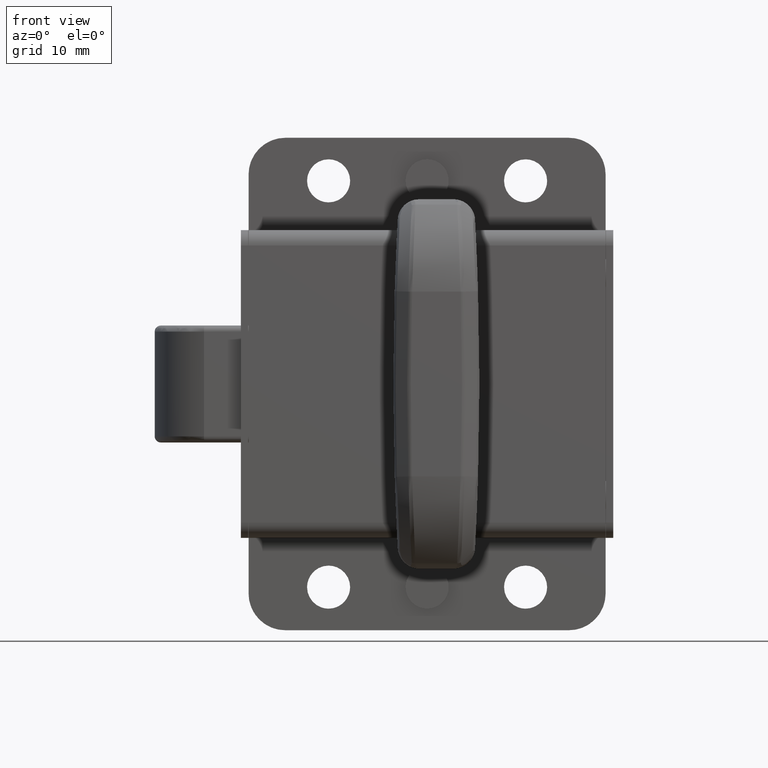
[diagram: clean part render]
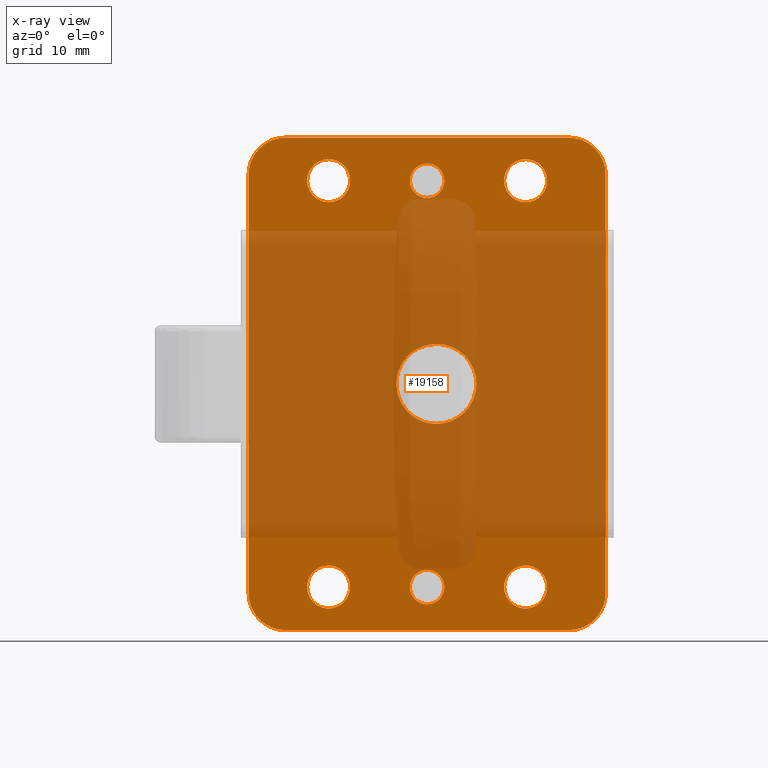
[diagram: x-ray — body ghosted, one internal face saturated and labeled with its STEP entity id]
A machine part, front view, then the same camera in x-ray: the body is ghosted and one INTERNAL B-rep face — a face not visible from any outside direction — is saturated and labeled: STEP entity #19158.
In plain terms, the highlighted face is a freeform B-spline surface patch.
Its self-contained STEP definition (entity closure, byte-faithful):
#15985=CARTESIAN_POINT('',(-4.792301663358950,-1.199999999999980,-4.391337459054315));
#15986=VERTEX_POINT('',#15985);
#15992=CARTESIAN_POINT('',(0.000001214073933,-1.199999999999980,-6.500000850103724));
#15993=VERTEX_POINT('',#15992);
#15994=CARTESIAN_POINT('',(-4.792301663358950,-1.199999999999980,-4.391337459054315));
#15995=CARTESIAN_POINT('',(-4.470015707304681,-1.199999999999978,-4.743171855040846));
#15996=CARTESIAN_POINT('',(-3.853720747870457,-1.199999999999983,-5.282344885085026));
#15997=CARTESIAN_POINT('',(-2.809964515657282,-1.199999999999976,-5.895433014173066));
#15998=CARTESIAN_POINT('',(-1.571603943293176,-1.199999999999982,-6.365425323140936));
#15999=CARTESIAN_POINT('',(-0.589415385706038,-1.199999999999980,-6.500221164891835));
#16000=CARTESIAN_POINT('',(0.000001214073933,-1.199999999999980,-6.500000850103724));
#16001=B_SPLINE_CURVE_WITH_KNOTS('',3,(#15994,#15995,#15996,#15997,#15998,#15999,#16000),.UNSPECIFIED.,.F.,.U.,(4,1,1,1,4),(0.000000020286969,1.431385826720467,2.441789631237880,3.620555862187216,5.388741804302561),.UNSPECIFIED.);
#16002=EDGE_CURVE('',#15986,#15993,#16001,.T.);
#16004=CARTESIAN_POINT('',(6.500001214073810,-1.199999999999980,0.000000410743780));
#16005=VERTEX_POINT('',#16004);
#16006=CARTESIAN_POINT('',(0.000001214073933,-1.199999999999980,-6.500000850103724));
#16007=CARTESIAN_POINT('',(0.425419468005159,-1.199999999999980,-6.500038131716355));
#16008=CARTESIAN_POINT('',(1.329443443233468,-1.199999999999979,-6.410982996561689));
#16009=CARTESIAN_POINT('',(2.553553276633491,-1.199999999999985,-6.023199855791245));
#16010=CARTESIAN_POINT('',(3.745935510485107,-1.199999999999972,-5.366895244898940));
#16011=CARTESIAN_POINT('',(4.846412343291277,-1.199999999999985,-4.429528985270027));
#16012=CARTESIAN_POINT('',(5.671700203156132,-1.199999999999979,-3.272791380923395));
#16013=CARTESIAN_POINT('',(6.140574684909497,-1.199999999999981,-2.196841752119047));
#16014=CARTESIAN_POINT('',(6.424787597008002,-1.199999999999981,-1.169878387314513));
#16015=CARTESIAN_POINT('',(6.500080360615208,-1.199999999999981,-0.452015617402365));
#16016=CARTESIAN_POINT('',(6.500001214073810,-1.199999999999980,0.000000410743780));
#16017=B_SPLINE_CURVE_WITH_KNOTS('',3,(#16006,#16007,#16008,#16009,#16010,#16011,#16012,#16013,#16014,#16015,#16016),.UNSPECIFIED.,.F.,.U.,(4,1,1,1,1,1,1,1,4),(0.000000073292902,1.276262834598748,2.712096167475313,3.828844210639872,5.344389993466797,7.019534449109688,8.056524343348579,8.854209608554262,10.210240899329250),.UNSPECIFIED.);
#16018=EDGE_CURVE('',#15993,#16005,#16017,.T.);
#16020=CARTESIAN_POINT('',(0.000001214073933,-1.199999999999980,6.499999149896276));
#16021=VERTEX_POINT('',#16020);
#16022=CARTESIAN_POINT('',(6.500001214073810,-1.199999999999980,0.000000410743780));
#16023=CARTESIAN_POINT('',(6.500183381790323,-1.199999999999985,0.558386322220361));
#16024=CARTESIAN_POINT('',(6.382743550411528,-1.199999999999971,1.462312592546497));
#16025=CARTESIAN_POINT('',(5.932330386673600,-1.199999999999988,2.745970474024642));
#16026=CARTESIAN_POINT('',(5.372904423925857,-1.199999999999970,3.719500498956982));
#16027=CARTESIAN_POINT('',(4.600443006949219,-1.199999999999993,4.637511982863880));
#16028=CARTESIAN_POINT('',(3.660102927218134,-1.199999999999975,5.428829736314413));
#16029=CARTESIAN_POINT('',(2.480454698086698,-1.199999999999987,6.059352016665108));
#16030=CARTESIAN_POINT('',(1.223085550253779,-1.199999999999958,6.423913500989699));
#16031=CARTESIAN_POINT('',(0.398835597850944,-1.200000000000049,6.500037162722860));
#16032=CARTESIAN_POINT('',(0.000001214073933,-1.199999999999980,6.499999149896276));
#16033=B_SPLINE_CURVE_WITH_KNOTS('',3,(#16022,#16023,#16024,#16025,#16026,#16027,#16028,#16029,#16030,#16031,#16032),.UNSPECIFIED.,.F.,.U.,(4,1,1,1,1,1,1,1,4),(0.000000073727589,1.675105284821985,2.712095790243967,4.068164782767649,5.025372981359588,6.301626187787408,7.737448314140335,9.013733064899856,10.210239478051360),.UNSPECIFIED.);
#16034=EDGE_CURVE('',#16005,#16021,#16033,.T.);
#16036=CARTESIAN_POINT('',(-4.658229887540539,-1.199999999999980,4.533306872488088));
#16037=VERTEX_POINT('',#16036);
#16038=CARTESIAN_POINT('',(0.000001214073933,-1.199999999999980,6.499999149896276));
#16039=CARTESIAN_POINT('',(-0.622169492574002,-1.199999999999981,6.500278598700613));
#16040=CARTESIAN_POINT('',(-1.514623900784171,-1.199999999999980,6.370822434779576));
#16041=CARTESIAN_POINT('',(-2.711373694765549,-1.199999999999980,5.934518477308647));
#16042=CARTESIAN_POINT('',(-3.688693793091402,-1.199999999999982,5.401440227368288));
#16043=CARTESIAN_POINT('',(-4.337574070853052,-1.199999999999980,4.862903421556821));
#16044=CARTESIAN_POINT('',(-4.658229887540539,-1.199999999999980,4.533306872488088));
#16045=B_SPLINE_CURVE_WITH_KNOTS('',3,(#16038,#16039,#16040,#16041,#16042,#16043,#16044),.UNSPECIFIED.,.F.,.U.,(4,1,1,1,4),(0.000000020541537,1.866406473722091,2.677866246871429,3.813945571181106,5.193458552064595),.UNSPECIFIED.);
#16046=EDGE_CURVE('',#16021,#16037,#16045,.T.);
#16083=CARTESIAN_POINT('',(-6.499998785925945,-1.199999999999980,-0.000002110951268));
#16084=VERTEX_POINT('',#16083);
#16085=CARTESIAN_POINT('',(-4.658229887540539,-1.199999999999980,4.533306872488088));
#16086=CARTESIAN_POINT('',(-4.986320601720766,-1.199999999999983,4.196308288386575));
#16087=CARTESIAN_POINT('',(-5.423113995365264,-1.199999999999978,3.637036386808933));
#16088=CARTESIAN_POINT('',(-5.937910034422883,-1.199999999999980,2.695746278033874));
#16089=CARTESIAN_POINT('',(-6.364942215579396,-1.199999999999989,1.567632854395846));
#16090=CARTESIAN_POINT('',(-6.500210322839753,-1.199999999999966,0.600988058048476));
#16091=CARTESIAN_POINT('',(-6.499998785925945,-1.199999999999980,-0.000002110951268));
#16092=B_SPLINE_CURVE_WITH_KNOTS('',3,(#16085,#16086,#16087,#16088,#16089,#16090,#16091),.UNSPECIFIED.,.F.,.U.,(4,1,1,1,4),(0.000000020608979,1.410970768505217,2.116459128091853,3.213875071421672,5.016782707480943),.UNSPECIFIED.);
#16093=EDGE_CURVE('',#16037,#16084,#16092,.T.);
#16095=CARTESIAN_POINT('',(-6.499998785925945,-1.199999999999980,-0.000002110951268));
#16096=CARTESIAN_POINT('',(-6.500064161619205,-1.199999999999980,-0.452022427979721));
#16097=CARTESIAN_POINT('',(-6.426339745132824,-1.199999999999981,-1.155117301204174));
#16098=CARTESIAN_POINT('',(-6.114951912197021,-1.199999999999977,-2.295631080389625));
#16099=CARTESIAN_POINT('',(-5.625603394015848,-1.199999999999994,-3.349721994576469));
#16100=CARTESIAN_POINT('',(-5.080743480167548,-1.199999999999972,-4.076622536040635));
#16101=CARTESIAN_POINT('',(-4.792301663358950,-1.199999999999980,-4.391337459054315));
#16102=B_SPLINE_CURVE_WITH_KNOTS('',3,(#16095,#16096,#16097,#16098,#16099,#16100,#16101),.UNSPECIFIED.,.F.,.U.,(4,1,1,1,4),(0.000000019845144,1.356048590183755,2.109405973048887,3.540786903215161,4.821497963178760),.UNSPECIFIED.);
#16103=EDGE_CURVE('',#16084,#15986,#16102,.T.);
#16199=CARTESIAN_POINT('',(0.564378294698098,-1.199999756963561,-31.108346926097742));
#16200=VERTEX_POINT('',#16199);
#16206=CARTESIAN_POINT('',(-1.499998785926152,-1.199999999999874,-30.199999999999999));
#16207=VERTEX_POINT('',#16206);
#16208=CARTESIAN_POINT('',(0.564378294698098,-1.199999756963561,-31.108346926097742));
#16209=CARTESIAN_POINT('',(0.433712888195126,-1.199999772346624,-30.965704595268129));
#16210=CARTESIAN_POINT('',(0.151735562420326,-1.199999805543430,-30.715751935942489));
#16211=CARTESIAN_POINT('',(-0.279312871124962,-1.199999856290176,-30.466291159827140));
#16212=CARTESIAN_POINT('',(-0.823028488602598,-1.199999920301086,-30.259948851366829));
#16213=CARTESIAN_POINT('',(-1.221905766415115,-1.199999967260358,-30.199859450533712));
#16214=CARTESIAN_POINT('',(-1.499998785926152,-1.199999999999874,-30.199999999999999));
#16215=B_SPLINE_CURVE_WITH_KNOTS('',3,(#16208,#16209,#16210,#16211,#16212,#16213,#16214),.UNSPECIFIED.,.F.,.U.,(4,1,1,1,4),(0.000000032918680,0.580326133600632,1.124399518544454,1.487083487862793,2.321304435653870),.UNSPECIFIED.);
#16216=EDGE_CURVE('',#16200,#16207,#16215,.T.);
#16218=CARTESIAN_POINT('',(-4.299998785925471,-1.199999999999874,-33.000001951717870));
#16219=VERTEX_POINT('',#16218);
#16220=CARTESIAN_POINT('',(-1.499998785926152,-1.199999999999874,-30.199999999999999));
#16221=CARTESIAN_POINT('',(-1.729075073179479,-1.199999999999875,-30.199938843554719));
#16222=CARTESIAN_POINT('',(-2.118470469845767,-1.199999999999870,-30.248074069695861));
#16223=CARTESIAN_POINT('',(-2.672889408829680,-1.199999999999873,-30.438793754339660));
#16224=CARTESIAN_POINT('',(-3.122196541352234,-1.199999999999881,-30.696994581340029));
#16225=CARTESIAN_POINT('',(-3.601046153301179,-1.199999999999873,-31.109923497232479));
#16226=CARTESIAN_POINT('',(-3.994447395764944,-1.199999999999873,-31.654161345332859));
#16227=CARTESIAN_POINT('',(-4.247671385329838,-1.199999999999875,-32.335702220650496));
#16228=CARTESIAN_POINT('',(-4.300037113128141,-1.199999999999874,-32.782382005344630));
#16229=CARTESIAN_POINT('',(-4.299998785925471,-1.199999999999874,-33.000001951717870));
#16230=B_SPLINE_CURVE_WITH_KNOTS('',3,(#16220,#16221,#16222,#16223,#16224,#16225,#16226,#16227,#16228,#16229),.UNSPECIFIED.,.F.,.U.,(4,1,1,1,1,1,1,4),(0.000000111330301,0.687214863138844,1.168289308711226,1.752438714769725,2.233456539250228,3.058156970560800,3.745400360037706,4.398258412087900),.UNSPECIFIED.);
#16231=EDGE_CURVE('',#16207,#16219,#16230,.T.);
#16233=CARTESIAN_POINT('',(-1.499998785926152,-1.199999999999874,-35.799999999999997));
#16234=VERTEX_POINT('',#16233);
#16235=CARTESIAN_POINT('',(-4.299998785925471,-1.199999999999874,-33.000001951717870));
#16236=CARTESIAN_POINT('',(-4.300236445373511,-1.199999999999876,-33.332198692015972));
#16237=CARTESIAN_POINT('',(-4.211331189186673,-1.199999999999873,-33.824529083963327));
#16238=CARTESIAN_POINT('',(-3.935934712630445,-1.199999999999874,-34.406470482256893));
#16239=CARTESIAN_POINT('',(-3.627749716097644,-1.199999999999873,-34.849934121683702));
#16240=CARTESIAN_POINT('',(-3.243291282613698,-1.199999999999872,-35.215953526750553));
#16241=CARTESIAN_POINT('',(-2.726789326181950,-1.199999999999881,-35.538604139724477));
#16242=CARTESIAN_POINT('',(-2.164308544686579,-1.199999999999853,-35.747685262396168));
#16243=CARTESIAN_POINT('',(-1.717617950881183,-1.199999999999895,-35.800037414538778));
#16244=CARTESIAN_POINT('',(-1.499998785926152,-1.199999999999874,-35.799999999999997));
#16245=B_SPLINE_CURVE_WITH_KNOTS('',3,(#16235,#16236,#16237,#16238,#16239,#16240,#16241,#16242,#16243,#16244),.UNSPECIFIED.,.F.,.U.,(4,1,1,1,1,1,1,4),(0.000000112002567,0.996479230406769,1.477551634614278,1.924262470805784,2.611441725202385,3.058155439671769,3.745398485375515,4.398256212033320),.UNSPECIFIED.);
#16246=EDGE_CURVE('',#16219,#16234,#16245,.T.);
#16248=CARTESIAN_POINT('',(0.506623411983129,-1.200000243874538,-34.952809068435492));
#16249=VERTEX_POINT('',#16248);
#16250=CARTESIAN_POINT('',(-1.499998785926152,-1.199999999999874,-35.799999999999997));
#16251=CARTESIAN_POINT('',(-1.325221218465181,-1.200000021241451,-35.800011304838463));
#16252=CARTESIAN_POINT('',(-0.940719196919770,-1.200000067971874,-35.763898072475428));
#16253=CARTESIAN_POINT('',(-0.223653127014348,-1.200000155120435,-35.542497944420667));
#16254=CARTESIAN_POINT('',(0.254924307029052,-1.200000213284316,-35.211983896234067));
#16255=CARTESIAN_POINT('',(0.506623411983129,-1.200000243874538,-34.952809068435492));
#16256=B_SPLINE_CURVE_WITH_KNOTS('',3,(#16250,#16251,#16252,#16253,#16254,#16255),.UNSPECIFIED.,.F.,.U.,(4,1,1,4),(0.000000030885372,0.524339305343396,1.153529005701464,2.237181902527841),.UNSPECIFIED.);
#16257=EDGE_CURVE('',#16234,#16249,#16256,.T.);
#16293=CARTESIAN_POINT('',(1.300001214073168,-1.199999999999874,-32.999998048282158));
#16294=VERTEX_POINT('',#16293);
#16295=CARTESIAN_POINT('',(0.506623411983129,-1.200000243874538,-34.952809068435492));
#16296=CARTESIAN_POINT('',(0.624382224396014,-1.200000228765451,-34.831823944326580));
#16297=CARTESIAN_POINT('',(0.859267817065191,-1.200000192588472,-34.542139002431703));
#16298=CARTESIAN_POINT('',(1.195524238876743,-1.200000112427126,-33.900251985047710));
#16299=CARTESIAN_POINT('',(1.300322514276370,-1.200000043581734,-33.348976994193180));
#16300=CARTESIAN_POINT('',(1.300001214073168,-1.199999999999874,-32.999998048282158));
#16301=B_SPLINE_CURVE_WITH_KNOTS('',3,(#16295,#16296,#16297,#16298,#16299,#16300),.UNSPECIFIED.,.F.,.U.,(4,1,1,4),(0.000000026006030,0.506502192906571,1.114289074912303,2.161076811412693),.UNSPECIFIED.);
#16302=EDGE_CURVE('',#16249,#16294,#16301,.T.);
#16304=CARTESIAN_POINT('',(1.300001214073168,-1.199999999999874,-32.999998048282158));
#16305=CARTESIAN_POINT('',(1.300434967868318,-1.199999952737572,-32.632136088296697));
#16306=CARTESIAN_POINT('',(1.161421493031856,-1.199999863840112,-31.940210715667099));
#16307=CARTESIAN_POINT('',(0.783823154820013,-1.199999787685512,-31.347468330939961));
#16308=CARTESIAN_POINT('',(0.564378294698098,-1.199999756963561,-31.108346926097742));
#16309=B_SPLINE_CURVE_WITH_KNOTS('',3,(#16304,#16305,#16306,#16307,#16308),.UNSPECIFIED.,.F.,.U.,(4,1,4),(0.000000012554552,1.103398861330132,2.076986617832425),.UNSPECIFIED.);
#16310=EDGE_CURVE('',#16294,#16200,#16309,.T.);
#16406=CARTESIAN_POINT('',(0.564378294698094,-1.199999756963563,34.891653073902262));
#16407=VERTEX_POINT('',#16406);
#16413=CARTESIAN_POINT('',(-1.499998785926152,-1.199999999999874,35.799999999999997));
#16414=VERTEX_POINT('',#16413);
#16415=CARTESIAN_POINT('',(0.564378294698094,-1.199999756963563,34.891653073902262));
#16416=CARTESIAN_POINT('',(0.335858033011489,-1.199999783866946,35.141484741326423));
#16417=CARTESIAN_POINT('',(-0.046598242961675,-1.199999828893000,35.430250316865532));
#16418=CARTESIAN_POINT('',(-0.762614568240878,-1.199999913188633,35.728795151074969));
#16419=CARTESIAN_POINT('',(-1.197714101798816,-1.199999964412310,35.800200607277283));
#16420=CARTESIAN_POINT('',(-1.499998785926152,-1.199999999999874,35.799999999999997));
#16421=B_SPLINE_CURVE_WITH_KNOTS('',3,(#16415,#16416,#16417,#16418,#16419,#16420),.UNSPECIFIED.,.F.,.U.,(4,1,1,4),(0.000000032918998,1.015581564237160,1.414542683934398,2.321304435653863),.UNSPECIFIED.);
#16422=EDGE_CURVE('',#16407,#16414,#16421,.T.);
#16424=CARTESIAN_POINT('',(-4.299998785925472,-1.199999999999874,32.999998048282123));
#16425=VERTEX_POINT('',#16424);
#16426=CARTESIAN_POINT('',(-1.499998785926152,-1.199999999999874,35.799999999999997));
#16427=CARTESIAN_POINT('',(-1.729074125215980,-1.199999999999875,35.800056475554157));
#16428=CARTESIAN_POINT('',(-2.118471635389773,-1.199999999999874,35.751930747783582));
#16429=CARTESIAN_POINT('',(-2.672888922694134,-1.199999999999870,35.561204647052072));
#16430=CARTESIAN_POINT('',(-3.122196616126589,-1.199999999999882,35.303005710656691));
#16431=CARTESIAN_POINT('',(-3.601046138199443,-1.199999999999877,34.890076457606170));
#16432=CARTESIAN_POINT('',(-3.994447425197427,-1.199999999999863,34.345838650068082));
#16433=CARTESIAN_POINT('',(-4.247671340504716,-1.199999999999895,33.664297853923813));
#16434=CARTESIAN_POINT('',(-4.300037202326118,-1.199999999999853,33.217617949687742));
#16435=CARTESIAN_POINT('',(-4.299998785925472,-1.199999999999874,32.999998048282123));
#16436=B_SPLINE_CURVE_WITH_KNOTS('',3,(#16426,#16427,#16428,#16429,#16430,#16431,#16432,#16433,#16434,#16435),.UNSPECIFIED.,.F.,.U.,(4,1,1,1,1,1,1,4),(0.000000111332822,0.687214863140170,1.168289308711644,1.752438714769383,2.233456539249842,3.058156970560976,3.745400360038023,4.398258412087889),.UNSPECIFIED.);
#16437=EDGE_CURVE('',#16414,#16425,#16436,.T.);
#16439=CARTESIAN_POINT('',(-1.499998785926152,-1.199999999999874,30.199999999999999));
#16440=VERTEX_POINT('',#16439);
#16441=CARTESIAN_POINT('',(-4.299998785925472,-1.199999999999874,32.999998048282123));
#16442=CARTESIAN_POINT('',(-4.300050285754481,-1.199999999999875,32.770923281404912));
#16443=CARTESIAN_POINT('',(-4.246293835179801,-1.199999999999873,32.335707151894290));
#16444=CARTESIAN_POINT('',(-4.041506220291189,-1.199999999999875,31.784834231507769));
#16445=CARTESIAN_POINT('',(-3.707404398017984,-1.199999999999869,31.234883414959739));
#16446=CARTESIAN_POINT('',(-3.251349241301072,-1.199999999999887,30.773198359745159));
#16447=CARTESIAN_POINT('',(-2.733538129362205,-1.199999999999859,30.471560372685179));
#16448=CARTESIAN_POINT('',(-2.175691987439064,-1.199999999999887,30.260277307819489));
#16449=CARTESIAN_POINT('',(-1.786365234962925,-1.199999999999862,30.199842622685988));
#16450=CARTESIAN_POINT('',(-1.499998785926152,-1.199999999999874,30.199999999999999));
#16451=B_SPLINE_CURVE_WITH_KNOTS('',3,(#16441,#16442,#16443,#16444,#16445,#16446,#16447,#16448,#16449,#16450),.UNSPECIFIED.,.F.,.U.,(4,1,1,1,1,1,1,4),(0.000000112001350,0.687214519843126,1.305734410517070,1.752437837361254,2.611441725202909,3.229968844155498,3.539228952763971,4.398256212033181),.UNSPECIFIED.);
#16452=EDGE_CURVE('',#16425,#16440,#16451,.T.);
#16454=CARTESIAN_POINT('',(0.506623411983129,-1.200000243874538,31.047190931564501));
#16455=VERTEX_POINT('',#16454);
#16456=CARTESIAN_POINT('',(-1.499998785926152,-1.199999999999874,30.199999999999999));
#16457=CARTESIAN_POINT('',(-1.197033964501218,-1.200000036820678,30.199829991218220));
#16458=CARTESIAN_POINT('',(-0.649479688938263,-1.200000103367645,30.289751410070220));
#16459=CARTESIAN_POINT('',(0.025885292791623,-1.200000185448064,30.620800016601461));
#16460=CARTESIAN_POINT('',(0.368491661991223,-1.200000227086712,30.905218797330878));
#16461=CARTESIAN_POINT('',(0.506623411983129,-1.200000243874538,31.047190931564501));
#16462=B_SPLINE_CURVE_WITH_KNOTS('',3,(#16456,#16457,#16458,#16459,#16460,#16461),.UNSPECIFIED.,.F.,.U.,(4,1,1,4),(0.000000030885003,0.908862581328084,1.642930241164364,2.237181902527837),.UNSPECIFIED.);
#16463=EDGE_CURVE('',#16440,#16455,#16462,.T.);
#16499=CARTESIAN_POINT('',(1.300001214073168,-1.199999999999874,33.000001951717827));
#16500=VERTEX_POINT('',#16499);
#16501=CARTESIAN_POINT('',(0.506623411983129,-1.200000243874538,31.047190931564501));
#16502=CARTESIAN_POINT('',(0.710834411996204,-1.200000217695107,31.256821186552319));
#16503=CARTESIAN_POINT('',(1.019658687310254,-1.200000163053979,31.694356633140028));
#16504=CARTESIAN_POINT('',(1.256016432984766,-1.200000077309763,32.380948027645012));
#16505=CARTESIAN_POINT('',(1.300022827533029,-1.200000023895627,32.808658275496931));
#16506=CARTESIAN_POINT('',(1.300001214073168,-1.199999999999874,33.000001951717827));
#16507=B_SPLINE_CURVE_WITH_KNOTS('',3,(#16501,#16502,#16503,#16504,#16505,#16506),.UNSPECIFIED.,.F.,.U.,(4,1,1,4),(0.000000026005425,0.877944132848981,1.587040585609728,2.161076811412690),.UNSPECIFIED.);
#16508=EDGE_CURVE('',#16455,#16500,#16507,.T.);
#16510=CARTESIAN_POINT('',(1.300001214073168,-1.199999999999874,33.000001951717827));
#16511=CARTESIAN_POINT('',(1.300066108334748,-1.199999969423279,33.237992185001019));
#16512=CARTESIAN_POINT('',(1.252808009377791,-1.199999922175596,33.605740293859583));
#16513=CARTESIAN_POINT('',(1.031557870955864,-1.199999837662511,34.263540290625258));
#16514=CARTESIAN_POINT('',(0.783845519206349,-1.199999787685359,34.652532842603833));
#16515=CARTESIAN_POINT('',(0.564378294698094,-1.199999756963563,34.891653073902262));
#16516=B_SPLINE_CURVE_WITH_KNOTS('',3,(#16510,#16511,#16512,#16513,#16514,#16515),.UNSPECIFIED.,.F.,.U.,(4,1,1,4),(0.000000012553828,0.713964351172842,1.103398861330196,2.076986617832442),.UNSPECIFIED.);
#16517=EDGE_CURVE('',#16500,#16407,#16516,.T.);
#16571=CARTESIAN_POINT('',(17.172446280861401,-1.199999999999980,35.260097426349191));
#16572=VERTEX_POINT('',#16571);
#16578=CARTESIAN_POINT('',(14.500001214073921,-1.199999999999980,36.500000000000007));
#16579=VERTEX_POINT('',#16578);
#16580=CARTESIAN_POINT('',(17.172446280861401,-1.199999999999980,35.260097426349191));
#16581=CARTESIAN_POINT('',(16.988409371556539,-1.199999999999982,35.477815584039973));
#16582=CARTESIAN_POINT('',(16.555018856680459,-1.199999999999978,35.878700462773743));
#16583=CARTESIAN_POINT('',(15.655941163067419,-1.199999999999982,36.364776992531773));
#16584=CARTESIAN_POINT('',(14.927663364982090,-1.199999999999977,36.500361177897709));
#16585=CARTESIAN_POINT('',(14.500001214073921,-1.199999999999980,36.500000000000007));
#16586=B_SPLINE_CURVE_WITH_KNOTS('',3,(#16580,#16581,#16582,#16583,#16584,#16585),.UNSPECIFIED.,.F.,.U.,(4,1,1,4),(0.000000035719705,0.855234592869286,1.757967933713819,3.040829194914025),.UNSPECIFIED.);
#16587=EDGE_CURVE('',#16572,#16579,#16586,.T.);
#16589=CARTESIAN_POINT('',(11.000001214074359,-1.199999999999980,32.999998254870377));
#16590=VERTEX_POINT('',#16589);
#16591=CARTESIAN_POINT('',(14.500001214073921,-1.199999999999980,36.500000000000007));
#16592=CARTESIAN_POINT('',(14.199339371578240,-1.199999999999981,36.500073603136499));
#16593=CARTESIAN_POINT('',(13.583720982109700,-1.199999999999980,36.420219185640377));
#16594=CARTESIAN_POINT('',(12.849562354033880,-1.199999999999982,36.116159061575082));
#16595=CARTESIAN_POINT('',(12.281395214752010,-1.199999999999980,35.726212968532110));
#16596=CARTESIAN_POINT('',(11.844263560641931,-1.199999999999981,35.310077359996477));
#16597=CARTESIAN_POINT('',(11.507175547486920,-1.199999999999980,34.843703045063862));
#16598=CARTESIAN_POINT('',(11.242759166916461,-1.199999999999979,34.318377104087837));
#16599=CARTESIAN_POINT('',(11.052430161298391,-1.199999999999982,33.730154135407048));
#16600=CARTESIAN_POINT('',(10.999949685649170,-1.199999999999980,33.257710660482381));
#16601=CARTESIAN_POINT('',(11.000001214074359,-1.199999999999980,32.999998254870377));
#16602=B_SPLINE_CURVE_WITH_KNOTS('',3,(#16591,#16592,#16593,#16594,#16595,#16596,#16597,#16598,#16599,#16600,#16601),.UNSPECIFIED.,.F.,.U.,(4,1,1,1,1,1,1,1,4),(0.000000101519645,0.901978698585748,1.846935036658562,2.362369571799328,2.963665000347733,3.650890574721147,4.080416664221138,4.724695051800475,5.497822623661585),.UNSPECIFIED.);
#16603=EDGE_CURVE('',#16579,#16590,#16602,.T.);
#16605=CARTESIAN_POINT('',(14.500001214073921,-1.199999999999980,29.500000000000000));
#16606=VERTEX_POINT('',#16605);
#16607=CARTESIAN_POINT('',(11.000001214074359,-1.199999999999980,32.999998254870377));
#16608=CARTESIAN_POINT('',(10.999922702182561,-1.199999999999980,32.699332547900873));
#16609=CARTESIAN_POINT('',(11.063127002079380,-1.199999999999980,32.212598866230422));
#16610=CARTESIAN_POINT('',(11.324660972148060,-1.199999999999981,31.467165103587760));
#16611=CARTESIAN_POINT('',(11.714510682934741,-1.199999999999982,30.825663256581890));
#16612=CARTESIAN_POINT('',(12.264584710573491,-1.199999999999980,30.275669783306071));
#16613=CARTESIAN_POINT('',(12.876769079647010,-1.199999999999976,29.872032341781232));
#16614=CARTESIAN_POINT('',(13.612390613247991,-1.199999999999992,29.577846867380149));
#16615=CARTESIAN_POINT('',(14.185015083390700,-1.199999999999967,29.499888402775799));
#16616=CARTESIAN_POINT('',(14.500001214073921,-1.199999999999980,29.500000000000000));
#16617=B_SPLINE_CURVE_WITH_KNOTS('',3,(#16607,#16608,#16609,#16610,#16611,#16612,#16613,#16614,#16615,#16616),.UNSPECIFIED.,.F.,.U.,(4,1,1,1,1,1,1,4),(0.000000102146859,0.901978376184235,1.460361594069925,2.362368726357496,3.135454784094645,3.779750652652952,4.552895210826786,5.497820656481328),.UNSPECIFIED.);
#16618=EDGE_CURVE('',#16590,#16606,#16617,.T.);
#16620=CARTESIAN_POINT('',(16.909241962881921,-1.199999999999980,30.461190049552449));
#16621=VERTEX_POINT('',#16620);
#16622=CARTESIAN_POINT('',(14.500001214073921,-1.199999999999980,29.500000000000000));
#16623=CARTESIAN_POINT('',(14.859871698497599,-1.199999999999980,29.499813289464491));
#16624=CARTESIAN_POINT('',(15.357982121907710,-1.199999999999980,29.577529204153791));
#16625=CARTESIAN_POINT('',(16.185996554190002,-1.199999999999980,29.896556350939640));
#16626=CARTESIAN_POINT('',(16.628298289132861,-1.199999999999977,30.194202247902890));
#16627=CARTESIAN_POINT('',(16.909241962881921,-1.199999999999980,30.461190049552449));
#16628=B_SPLINE_CURVE_WITH_KNOTS('',3,(#16622,#16623,#16624,#16625,#16626,#16627),.UNSPECIFIED.,.F.,.U.,(4,1,1,4),(0.000000026549798,1.079530525100200,1.494709213030870,2.657279247570143),.UNSPECIFIED.);
#16629=EDGE_CURVE('',#16606,#16621,#16628,.T.);
#16715=CARTESIAN_POINT('',(18.000001214073482,-1.199999999999980,33.000001745129588));
#16716=VERTEX_POINT('',#16715);
#16717=CARTESIAN_POINT('',(16.909241962881921,-1.199999999999980,30.461190049552449));
#16718=CARTESIAN_POINT('',(17.156170531483191,-1.199999999999980,30.695327206788431));
#16719=CARTESIAN_POINT('',(17.580856924002909,-1.199999999999980,31.236376634549188));
#16720=CARTESIAN_POINT('',(17.930553719171929,-1.199999999999979,32.127110532943490));
#16721=CARTESIAN_POINT('',(18.000030023332609,-1.199999999999980,32.733706461856258));
#16722=CARTESIAN_POINT('',(18.000001214073482,-1.199999999999980,33.000001745129588));
#16723=B_SPLINE_CURVE_WITH_KNOTS('',3,(#16717,#16718,#16719,#16720,#16721,#16722),.UNSPECIFIED.,.F.,.U.,(4,1,1,4),(0.000000032780110,1.020828476301063,2.041638957000445,2.840543910403616),.UNSPECIFIED.);
#16724=EDGE_CURVE('',#16621,#16716,#16723,.T.);
#16726=CARTESIAN_POINT('',(18.000001214073482,-1.199999999999980,33.000001745129588));
#16727=CARTESIAN_POINT('',(18.000267208477329,-1.199999999999980,33.383948291672233));
#16728=CARTESIAN_POINT('',(17.906379934639322,-1.199999999999974,33.946829780113767));
#16729=CARTESIAN_POINT('',(17.582039408298460,-1.199999999999985,34.701509643136589));
#16730=CARTESIAN_POINT('',(17.337756341301692,-1.199999999999977,35.064704381932110));
#16731=CARTESIAN_POINT('',(17.172446280861401,-1.199999999999980,35.260097426349191));
#16732=B_SPLINE_CURVE_WITH_KNOTS('',3,(#16726,#16727,#16728,#16729,#16730,#16731),.UNSPECIFIED.,.F.,.U.,(4,1,1,4),(0.000000020262999,1.151718543547433,1.689178407128423,2.456992204728481),.UNSPECIFIED.);
#16733=EDGE_CURVE('',#16716,#16572,#16732,.T.);
#16778=CARTESIAN_POINT('',(-14.827553719138670,-1.199999999999980,35.260097426349191));
#16779=VERTEX_POINT('',#16778);
#16785=CARTESIAN_POINT('',(-17.499998785926149,-1.199999999999980,36.500000000000007));
#16786=VERTEX_POINT('',#16785);
#16787=CARTESIAN_POINT('',(-14.827553719138670,-1.199999999999980,35.260097426349191));
#16788=CARTESIAN_POINT('',(-15.011584710485151,-1.199999999999981,35.477828123980572));
#16789=CARTESIAN_POINT('',(-15.327877383204321,-1.199999999999978,35.770314502982032));
#16790=CARTESIAN_POINT('',(-15.864486211597390,-1.199999999999982,36.109244864197002));
#16791=CARTESIAN_POINT('',(-16.534032788288581,-1.199999999999978,36.403576994242421));
#16792=CARTESIAN_POINT('',(-17.119861884577631,-1.199999999999982,36.500224664852148));
#16793=CARTESIAN_POINT('',(-17.499998785926149,-1.199999999999980,36.500000000000007));
#16794=B_SPLINE_CURVE_WITH_KNOTS('',3,(#16787,#16788,#16789,#16790,#16791,#16792,#16793),.UNSPECIFIED.,.F.,.U.,(4,1,1,1,4),(0.000000035718191,0.855234592868719,1.282861296967901,1.900510504468143,3.040829194914022),.UNSPECIFIED.);
#16795=EDGE_CURVE('',#16779,#16786,#16794,.T.);
#16797=CARTESIAN_POINT('',(-20.999998785925708,-1.199999999999980,32.999998254870377));
#16798=VERTEX_POINT('',#16797);
#16799=CARTESIAN_POINT('',(-17.499998785926149,-1.199999999999980,36.500000000000007));
#16800=CARTESIAN_POINT('',(-17.800666238035650,-1.199999999999980,36.500089410015882));
#16801=CARTESIAN_POINT('',(-18.287395768216442,-1.199999999999979,36.436861764500563));
#16802=CARTESIAN_POINT('',(-19.032829091105079,-1.199999999999979,36.175337764026601));
#16803=CARTESIAN_POINT('',(-19.736061267654431,-1.199999999999982,35.748043516245879));
#16804=CARTESIAN_POINT('',(-20.340343912036879,-1.199999999999981,35.105461982914463));
#16805=CARTESIAN_POINT('',(-20.726270174498872,-1.199999999999974,34.414141276611950));
#16806=CARTESIAN_POINT('',(-20.947565553250239,-1.199999999999981,33.730150839641588));
#16807=CARTESIAN_POINT('',(-21.000050407612100,-1.199999999999981,33.257710797364702));
#16808=CARTESIAN_POINT('',(-20.999998785925708,-1.199999999999980,32.999998254870377));
#16809=B_SPLINE_CURVE_WITH_KNOTS('',3,(#16799,#16800,#16801,#16802,#16803,#16804,#16805,#16806,#16807,#16808),.UNSPECIFIED.,.F.,.U.,(4,1,1,1,1,1,1,4),(0.000000101531078,0.901978698593791,1.460362116029285,2.362369571803066,3.350224037189566,4.080416664221897,4.724695051800785,5.497822623661588),.UNSPECIFIED.);
#16810=EDGE_CURVE('',#16786,#16798,#16809,.T.);
#16812=CARTESIAN_POINT('',(-17.499998785926149,-1.199999999999980,29.500000000000000));
#16813=VERTEX_POINT('',#16812);
#16814=CARTESIAN_POINT('',(-20.999998785925708,-1.199999999999980,32.999998254870377));
#16815=CARTESIAN_POINT('',(-21.000033966090520,-1.199999999999980,32.742296463949607));
#16816=CARTESIAN_POINT('',(-20.936520819292369,-1.199999999999979,32.169598709866747));
#16817=CARTESIAN_POINT('',(-20.649618638772381,-1.199999999999978,31.397680872629341));
#16818=CARTESIAN_POINT('',(-20.165323733761010,-1.199999999999982,30.682466262378920));
#16819=CARTESIAN_POINT('',(-19.633492071302999,-1.199999999999983,30.194460036657130));
#16820=CARTESIAN_POINT('',(-19.042395582718530,-1.199999999999970,29.840254144550940));
#16821=CARTESIAN_POINT('',(-18.373281700251749,-1.199999999999982,29.577377604144360));
#16822=CARTESIAN_POINT('',(-17.829307713539901,-1.199999999999988,29.499866078639101));
#16823=CARTESIAN_POINT('',(-17.499998785926149,-1.199999999999980,29.500000000000000));
#16824=B_SPLINE_CURVE_WITH_KNOTS('',3,(#16814,#16815,#16816,#16817,#16818,#16819,#16820,#16821,#16822,#16823),.UNSPECIFIED.,.F.,.U.,(4,1,1,1,1,1,1,4),(0.000000102129741,0.773114264907706,1.718072327788990,2.448262336582348,3.350222836631181,3.865654999035774,4.509934724384633,5.497820656481434),.UNSPECIFIED.);
#16825=EDGE_CURVE('',#16798,#16813,#16824,.T.);
#16827=CARTESIAN_POINT('',(-15.090758037118150,-1.199999999999980,30.461190049552449));
#16828=VERTEX_POINT('',#16827);
#16829=CARTESIAN_POINT('',(-17.499998785926149,-1.199999999999980,29.500000000000000));
#16830=CARTESIAN_POINT('',(-17.278559380827819,-1.199999999999982,29.499978676519341));
#16831=CARTESIAN_POINT('',(-16.821850045151610,-1.199999999999985,29.543468763723610));
#16832=CARTESIAN_POINT('',(-16.248796577086189,-1.199999999999969,29.714878364451899));
#16833=CARTESIAN_POINT('',(-15.649781188935370,-1.199999999999995,30.004819765322971));
#16834=CARTESIAN_POINT('',(-15.301534452571470,-1.199999999999971,30.261063659624352));
#16835=CARTESIAN_POINT('',(-15.090758037118150,-1.199999999999980,30.461190049552449));
#16836=B_SPLINE_CURVE_WITH_KNOTS('',3,(#16829,#16830,#16831,#16832,#16833,#16834,#16835),.UNSPECIFIED.,.F.,.U.,(4,1,1,1,4),(0.000000026552969,0.664319831806173,1.370142638173089,1.785356104447892,2.657279247570125),.UNSPECIFIED.);
#16837=EDGE_CURVE('',#16813,#16828,#16836,.T.);
#16922=CARTESIAN_POINT('',(-13.999998785926589,-1.199999999999980,33.000001745129588));
#16923=VERTEX_POINT('',#16922);
#16924=CARTESIAN_POINT('',(-15.090758037118150,-1.199999999999980,30.461190049552449));
#16925=CARTESIAN_POINT('',(-14.940506026921110,-1.199999999999980,30.603750490094519));
#16926=CARTESIAN_POINT('',(-14.645761850306849,-1.199999999999982,30.937930360389071));
#16927=CARTESIAN_POINT('',(-14.328616842365440,-1.199999999999974,31.475977267824060));
#16928=CARTESIAN_POINT('',(-14.070697553419659,-1.199999999999985,32.171583801200832));
#16929=CARTESIAN_POINT('',(-13.999878969998569,-1.199999999999978,32.674506835203672));
#16930=CARTESIAN_POINT('',(-13.999998785926589,-1.199999999999980,33.000001745129588));
#16931=B_SPLINE_CURVE_WITH_KNOTS('',3,(#16924,#16925,#16926,#16927,#16928,#16929,#16930),.UNSPECIFIED.,.F.,.U.,(4,1,1,1,4),(0.000000032780936,0.621367018189227,1.331515744419594,1.864105293257456,2.840543910403647),.UNSPECIFIED.);
#16932=EDGE_CURVE('',#16828,#16923,#16931,.T.);
#16934=CARTESIAN_POINT('',(-13.999998785926589,-1.199999999999980,33.000001745129588));
#16935=CARTESIAN_POINT('',(-13.999987521580030,-1.199999999999980,33.217544753523683));
#16936=CARTESIAN_POINT('',(-14.047811319281960,-1.199999999999983,33.729427771163003));
#16937=CARTESIAN_POINT('',(-14.301692073889891,-1.199999999999973,34.514934230870089));
#16938=CARTESIAN_POINT('',(-14.629154932744280,-1.199999999999987,35.025645107985177));
#16939=CARTESIAN_POINT('',(-14.827553719138670,-1.199999999999980,35.260097426349191));
#16940=B_SPLINE_CURVE_WITH_KNOTS('',3,(#16934,#16935,#16936,#16937,#16938,#16939),.UNSPECIFIED.,.F.,.U.,(4,1,1,4),(0.000000020256295,0.652638762507576,1.535614072067835,2.456992204728486),.UNSPECIFIED.);
#16941=EDGE_CURVE('',#16923,#16779,#16940,.T.);
#16987=CARTESIAN_POINT('',(-14.827553719138670,-1.199999999999980,-30.739902573650809));
#16988=VERTEX_POINT('',#16987);
#16994=CARTESIAN_POINT('',(-17.499998785926149,-1.199999999999980,-29.500000000000000));
#16995=VERTEX_POINT('',#16994);
#16996=CARTESIAN_POINT('',(-14.827553719138670,-1.199999999999980,-30.739902573650809));
#16997=CARTESIAN_POINT('',(-15.072837836271709,-1.199999999999982,-30.449489314951080));
#16998=CARTESIAN_POINT('',(-15.573832483243480,-1.199999999999977,-30.022991024504371));
#16999=CARTESIAN_POINT('',(-16.502337429840409,-1.199999999999981,-29.599824297456959));
#17000=CARTESIAN_POINT('',(-17.135712085136369,-1.199999999999982,-29.499812656324210));
#17001=CARTESIAN_POINT('',(-17.499998785926149,-1.199999999999980,-29.500000000000000));
#17002=B_SPLINE_CURVE_WITH_KNOTS('',3,(#16996,#16997,#16998,#16999,#17000,#17001),.UNSPECIFIED.,.F.,.U.,(4,1,1,4),(0.000000035720842,1.140318726209355,1.948028416094942,3.040829194914014),.UNSPECIFIED.);
#17003=EDGE_CURVE('',#16988,#16995,#17002,.T.);
#17005=CARTESIAN_POINT('',(-20.999998785925719,-1.199999999999980,-33.000001745129623));
#17006=VERTEX_POINT('',#17005);
#17007=CARTESIAN_POINT('',(-17.499998785926149,-1.199999999999980,-29.500000000000000));
#17008=CARTESIAN_POINT('',(-17.857948921010120,-1.199999999999979,-29.499814921975599));
#17009=CARTESIAN_POINT('',(-18.516430165023809,-1.199999999999982,-29.601931348080541));
#17010=CARTESIAN_POINT('',(-19.340982517444822,-1.199999999999981,-29.985747982172661));
#17011=CARTESIAN_POINT('',(-19.984729643303339,-1.199999999999975,-30.494550620432520));
#17012=CARTESIAN_POINT('',(-20.420352583386830,-1.199999999999995,-31.032087605400740));
#17013=CARTESIAN_POINT('',(-20.738407020014218,-1.199999999999974,-31.627155001259720));
#17014=CARTESIAN_POINT('',(-20.945982071615710,-1.199999999999968,-32.255529213409268));
#17015=CARTESIAN_POINT('',(-21.000050318238259,-1.199999999999990,-32.742289332884368));
#17016=CARTESIAN_POINT('',(-20.999998785925719,-1.199999999999980,-33.000001745129623));
#17017=B_SPLINE_CURVE_WITH_KNOTS('',3,(#17007,#17008,#17009,#17010,#17011,#17012,#17013,#17014,#17015,#17016),.UNSPECIFIED.,.F.,.U.,(4,1,1,1,1,1,1,4),(0.000000101523584,1.073785355475691,1.975798393274916,2.705995962222471,3.522026930227669,4.037463279813372,4.724695051800845,5.497822623661584),.UNSPECIFIED.);
#17018=EDGE_CURVE('',#16995,#17006,#17017,.T.);
#17020=CARTESIAN_POINT('',(-17.499998785926149,-1.199999999999980,-36.500000000000007));
#17021=VERTEX_POINT('',#17020);
#17022=CARTESIAN_POINT('',(-20.999998785925719,-1.199999999999980,-33.000001745129623));
#17023=CARTESIAN_POINT('',(-21.000092480214459,-1.199999999999978,-33.300669419493040));
#17024=CARTESIAN_POINT('',(-20.936857095172719,-1.199999999999981,-33.787398914455970));
#17025=CARTESIAN_POINT('',(-20.675344201064370,-1.199999999999979,-34.532833323383912));
#17026=CARTESIAN_POINT('',(-20.285492394492270,-1.199999999999981,-35.174344083989070));
#17027=CARTESIAN_POINT('',(-19.735408594543092,-1.199999999999980,-35.724319737061187));
#17028=CARTESIAN_POINT('',(-19.135238101968799,-1.199999999999981,-36.120047272157990));
#17029=CARTESIAN_POINT('',(-18.401918630941431,-1.199999999999981,-36.418561109218707));
#17030=CARTESIAN_POINT('',(-17.829305363549810,-1.199999999999977,-36.500125039213302));
#17031=CARTESIAN_POINT('',(-17.499998785926149,-1.199999999999980,-36.500000000000007));
#17032=B_SPLINE_CURVE_WITH_KNOTS('',3,(#17022,#17023,#17024,#17025,#17026,#17027,#17028,#17029,#17030,#17031),.UNSPECIFIED.,.F.,.U.,(4,1,1,1,1,1,1,4),(0.000000102119286,0.901978376160910,1.460361594049888,2.362368726343066,3.135454784083588,3.779750652644653,4.509934724382101,5.497820656481443),.UNSPECIFIED.);
#17033=EDGE_CURVE('',#17006,#17021,#17032,.T.);
#17035=CARTESIAN_POINT('',(-15.090758037118141,-1.199999999999980,-35.538809950447558));
#17036=VERTEX_POINT('',#17035);
#17037=CARTESIAN_POINT('',(-17.499998785926149,-1.199999999999980,-36.500000000000007));
#17038=CARTESIAN_POINT('',(-17.070894149944401,-1.199999999999980,-36.500365337311599));
#17039=CARTESIAN_POINT('',(-16.406865713910609,-1.199999999999975,-36.376271128314443));
#17040=CARTESIAN_POINT('',(-15.612598191889930,-1.199999999999988,-35.974058530958168));
#17041=CARTESIAN_POINT('',(-15.251368824192060,-1.199999999999977,-35.691255561598872));
#17042=CARTESIAN_POINT('',(-15.090758037118141,-1.199999999999980,-35.538809950447558));
#17043=B_SPLINE_CURVE_WITH_KNOTS('',3,(#17037,#17038,#17039,#17040,#17041,#17042),.UNSPECIFIED.,.F.,.U.,(4,1,1,4),(0.000000026549197,1.287136635980581,1.992959442314174,2.657279247570150),.UNSPECIFIED.);
#17044=EDGE_CURVE('',#17021,#17036,#17043,.T.);
#17130=CARTESIAN_POINT('',(-13.999998785926589,-1.199999999999980,-32.999998254870427));
#17131=VERTEX_POINT('',#17130);
#17132=CARTESIAN_POINT('',(-15.090758037118141,-1.199999999999980,-35.538809950447558));
#17133=CARTESIAN_POINT('',(-14.854571092791820,-1.199999999999983,-35.314846514807158));
#17134=CARTESIAN_POINT('',(-14.464067533803579,-1.199999999999983,-34.823758499838611));
#17135=CARTESIAN_POINT('',(-14.087302566503890,-1.199999999999961,-33.946789228133753));
#17136=CARTESIAN_POINT('',(-13.999875074228971,-1.199999999999984,-33.325488464963733));
#17137=CARTESIAN_POINT('',(-13.999998785926589,-1.199999999999980,-32.999998254870427));
#17138=B_SPLINE_CURVE_WITH_KNOTS('',3,(#17132,#17133,#17134,#17135,#17136,#17137),.UNSPECIFIED.,.F.,.U.,(4,1,1,4),(0.000000032781042,0.976438649940459,1.864105293257083,2.840543910403619),.UNSPECIFIED.);
#17139=EDGE_CURVE('',#17036,#17131,#17138,.T.);
#17141=CARTESIAN_POINT('',(-13.999998785926589,-1.199999999999980,-32.999998254870427));
#17142=CARTESIAN_POINT('',(-13.999729415646890,-1.199999999999982,-32.603256144564348));
#17143=CARTESIAN_POINT('',(-14.140844651206180,-1.199999999999973,-31.784491414564311));
#17144=CARTESIAN_POINT('',(-14.554547162188390,-1.199999999999982,-31.062139364686779));
#17145=CARTESIAN_POINT('',(-14.827553719138670,-1.199999999999980,-30.739902573650809));
#17146=B_SPLINE_CURVE_WITH_KNOTS('',3,(#17141,#17142,#17143,#17144,#17145),.UNSPECIFIED.,.F.,.U.,(4,1,4),(0.000000020259206,1.190120836871412,2.456992204728485),.UNSPECIFIED.);
#17147=EDGE_CURVE('',#17131,#16988,#17146,.T.);
#17193=CARTESIAN_POINT('',(17.172446280861390,-1.199999999999980,-30.739902573650809));
#17194=VERTEX_POINT('',#17193);
#17200=CARTESIAN_POINT('',(14.500001214073921,-1.199999999999980,-29.500000000000000));
#17201=VERTEX_POINT('',#17200);
#17202=CARTESIAN_POINT('',(17.172446280861390,-1.199999999999980,-30.739902573650809));
#17203=CARTESIAN_POINT('',(16.988405113617620,-1.199999999999979,-30.522184162030079));
#17204=CARTESIAN_POINT('',(16.648706436100021,-1.199999999999982,-30.208007937186991));
#17205=CARTESIAN_POINT('',(16.066416798007150,-1.199999999999978,-29.851192091129320));
#17206=CARTESIAN_POINT('',(15.386844302124929,-1.199999999999983,-29.579619110355150));
#17207=CARTESIAN_POINT('',(14.832603939531060,-1.199999999999978,-29.499876212363191));
#17208=CARTESIAN_POINT('',(14.500001214073921,-1.199999999999980,-29.500000000000000));
#17209=B_SPLINE_CURVE_WITH_KNOTS('',3,(#17202,#17203,#17204,#17205,#17206,#17207,#17208),.UNSPECIFIED.,.F.,.U.,(4,1,1,1,4),(0.000000035719566,0.855234592869108,1.377877101635584,2.043052812968036,3.040829194914015),.UNSPECIFIED.);
#17210=EDGE_CURVE('',#17194,#17201,#17209,.T.);
#17212=CARTESIAN_POINT('',(11.000001214074359,-1.199999999999980,-33.000001745129623));
#17213=VERTEX_POINT('',#17212);
#17214=CARTESIAN_POINT('',(14.500001214073921,-1.199999999999980,-29.500000000000000));
#17215=CARTESIAN_POINT('',(14.242299139782549,-1.199999999999978,-29.499965865731632));
#17216=CARTESIAN_POINT('',(13.698240711894639,-1.199999999999988,-29.560308992526110));
#17217=CARTESIAN_POINT('',(12.978408487563200,-1.199999999999970,-29.817888447212368));
#17218=CARTESIAN_POINT('',(12.307706300373949,-1.199999999999985,-30.236859536019310));
#17219=CARTESIAN_POINT('',(11.843103965239280,-1.199999999999980,-30.690177345604631));
#17220=CARTESIAN_POINT('',(11.471487037368201,-1.199999999999975,-31.217959062987848));
#17221=CARTESIAN_POINT('',(11.120136726300551,-1.199999999999988,-31.926437836870850));
#17222=CARTESIAN_POINT('',(10.999612058923621,-1.199999999999976,-32.570423419329799));
#17223=CARTESIAN_POINT('',(11.000001214074359,-1.199999999999980,-33.000001745129623));
#17224=B_SPLINE_CURVE_WITH_KNOTS('',3,(#17214,#17215,#17216,#17217,#17218,#17219,#17220,#17221,#17222,#17223),.UNSPECIFIED.,.F.,.U.,(4,1,1,1,1,1,1,4),(0.000000101520264,0.773114541068735,1.632169228009765,2.276468607746480,3.135455907719549,3.564992090166676,4.209273811052853,5.497822623661580),.UNSPECIFIED.);
#17225=EDGE_CURVE('',#17201,#17213,#17224,.T.);
#17227=CARTESIAN_POINT('',(14.500001214073921,-1.199999999999980,-36.500000000000007));
#17228=VERTEX_POINT('',#17227);
#17229=CARTESIAN_POINT('',(11.000001214074359,-1.199999999999980,-33.000001745129623));
#17230=CARTESIAN_POINT('',(10.999969935584531,-1.199999999999978,-33.229073064340568));
#17231=CARTESIAN_POINT('',(11.043753833955449,-1.199999999999982,-33.672882924514582));
#17232=CARTESIAN_POINT('',(11.268502565050630,-1.199999999999981,-34.431089884342953));
#17233=CARTESIAN_POINT('',(11.698475978946670,-1.199999999999978,-35.168837693654382));
#17234=CARTESIAN_POINT('',(12.287075004279490,-1.199999999999986,-35.742982506087422));
#17235=CARTESIAN_POINT('',(12.903523545764330,-1.199999999999958,-36.138658280460788));
#17236=CARTESIAN_POINT('',(13.612376207372421,-1.200000000000004,-36.422178529937732));
#17237=CARTESIAN_POINT('',(14.185023115351100,-1.199999999999967,-36.500091978318800));
#17238=CARTESIAN_POINT('',(14.500001214073921,-1.199999999999980,-36.500000000000007));
#17239=B_SPLINE_CURVE_WITH_KNOTS('',3,(#17229,#17230,#17231,#17232,#17233,#17234,#17235,#17236,#17237,#17238),.UNSPECIFIED.,.F.,.U.,(4,1,1,1,1,1,1,4),(0.000000102122082,0.687211086697017,1.331503588241032,2.362368726342363,3.221355579600102,3.779750652644481,4.552895210822042,5.497820656481443),.UNSPECIFIED.);
#17240=EDGE_CURVE('',#17213,#17228,#17239,.T.);
#17242=CARTESIAN_POINT('',(16.909241962881929,-1.199999999999980,-35.538809950447558));
#17243=VERTEX_POINT('',#17242);
#17244=CARTESIAN_POINT('',(14.500001214073921,-1.199999999999980,-36.500000000000007));
#17245=CARTESIAN_POINT('',(14.887568388704350,-1.199999999999983,-36.500246610723437));
#17246=CARTESIAN_POINT('',(15.413296074246229,-1.199999999999979,-36.411745756466082));
#17247=CARTESIAN_POINT('',(16.233517708231009,-1.199999999999984,-36.073165263151701));
#17248=CARTESIAN_POINT('',(16.648328895436411,-1.199999999999976,-35.786662068891211));
#17249=CARTESIAN_POINT('',(16.909241962881929,-1.199999999999980,-35.538809950447558));
#17250=B_SPLINE_CURVE_WITH_KNOTS('',3,(#17244,#17245,#17246,#17247,#17248,#17249),.UNSPECIFIED.,.F.,.U.,(4,1,1,4),(0.000000026549149,1.162570061140085,1.577748749067179,2.657279247570167),.UNSPECIFIED.);
#17251=EDGE_CURVE('',#17228,#17243,#17250,.T.);
#17338=CARTESIAN_POINT('',(18.000001214073489,-1.199999999999980,-32.999998254870420));
#17339=VERTEX_POINT('',#17338);
#17340=CARTESIAN_POINT('',(16.909241962881929,-1.199999999999980,-35.538809950447558));
#17341=CARTESIAN_POINT('',(17.102450222911280,-1.199999999999979,-35.355537613809616));
#17342=CARTESIAN_POINT('',(17.398861597315179,-1.199999999999980,-35.001654015128032));
#17343=CARTESIAN_POINT('',(17.698244919405880,-1.199999999999981,-34.454760524863232));
#17344=CARTESIAN_POINT('',(17.931399811347550,-1.199999999999978,-33.813627312847068));
#17345=CARTESIAN_POINT('',(18.000114148682471,-1.199999999999982,-33.325490886716132));
#17346=CARTESIAN_POINT('',(18.000001214073489,-1.199999999999980,-32.999998254870420));
#17347=B_SPLINE_CURVE_WITH_KNOTS('',3,(#17340,#17341,#17342,#17343,#17344,#17345,#17346),.UNSPECIFIED.,.F.,.U.,(4,1,1,1,4),(0.000000032780100,0.798904986146089,1.375906722613449,1.864105293257260,2.840543910403629),.UNSPECIFIED.);
#17348=EDGE_CURVE('',#17243,#17339,#17347,.T.);
#17350=CARTESIAN_POINT('',(18.000001214073489,-1.199999999999980,-32.999998254870420));
#17351=CARTESIAN_POINT('',(18.000421578377360,-1.199999999999979,-32.564850291646209));
#17352=CARTESIAN_POINT('',(17.845146856007730,-1.199999999999981,-31.746192879442670));
#17353=CARTESIAN_POINT('',(17.420527293060822,-1.199999999999981,-31.032916771042970));
#17354=CARTESIAN_POINT('',(17.172446280861390,-1.199999999999980,-30.739902573650809));
#17355=B_SPLINE_CURVE_WITH_KNOTS('',3,(#17350,#17351,#17352,#17353,#17354),.UNSPECIFIED.,.F.,.U.,(4,1,4),(0.000000020258814,1.305273681398484,2.456992204728493),.UNSPECIFIED.);
#17356=EDGE_CURVE('',#17339,#17194,#17355,.T.);
#18019=CARTESIAN_POINT('',(27.550001214073848,-1.199999999999980,-25.0));
#18020=VERTEX_POINT('',#18019);
#18021=CARTESIAN_POINT('',(27.550001214073848,-1.199999999999980,25.0));
#18022=VERTEX_POINT('',#18021);
#18023=CARTESIAN_POINT('',(27.550001214073848,-1.199999999999980,-25.0));
#18024=CARTESIAN_POINT('',(27.550001214073848,-1.199999999999980,25.0));
#18025=QUASI_UNIFORM_CURVE('',1,(#18023,#18024),.UNSPECIFIED.,.F.,.U.);
#18026=EDGE_CURVE('',#18020,#18022,#18025,.T.);
#18171=CARTESIAN_POINT('',(-30.549998785926149,-1.199999999999980,25.0));
#18172=VERTEX_POINT('',#18171);
#18173=CARTESIAN_POINT('',(-30.549998785926149,-1.199999999999980,9.650000000000000));
#18174=VERTEX_POINT('',#18173);
#18175=CARTESIAN_POINT('',(-30.549998785926149,-1.199999999999980,25.0));
#18176=CARTESIAN_POINT('',(-30.549998785926149,-1.199999999999980,9.650000000000000));
#18177=QUASI_UNIFORM_CURVE('',1,(#18175,#18176),.UNSPECIFIED.,.F.,.U.);
#18178=EDGE_CURVE('',#18172,#18174,#18177,.T.);
#18224=CARTESIAN_POINT('',(-30.549998785926149,-1.199999999999980,-25.0));
#18225=VERTEX_POINT('',#18224);
#18231=CARTESIAN_POINT('',(-30.549998785926149,-1.199999999999980,-9.650000000000000));
#18232=VERTEX_POINT('',#18231);
#18233=CARTESIAN_POINT('',(-30.549998785926149,-1.199999999999980,-9.650000000000000));
#18234=CARTESIAN_POINT('',(-30.549998785926149,-1.199999999999980,-25.0));
#18235=QUASI_UNIFORM_CURVE('',1,(#18233,#18234),.UNSPECIFIED.,.F.,.U.);
#18236=EDGE_CURVE('',#18232,#18225,#18235,.T.);
#18490=CARTESIAN_POINT('',(-24.499998785926149,-1.199999999999980,40.0));
#18491=VERTEX_POINT('',#18490);
#18497=CARTESIAN_POINT('',(21.500001214073951,-1.199999999999980,40.0));
#18498=VERTEX_POINT('',#18497);
#18499=CARTESIAN_POINT('',(21.500001214073951,-1.199999999999980,40.0));
#18500=CARTESIAN_POINT('',(-24.499998785926149,-1.199999999999980,40.0));
#18501=QUASI_UNIFORM_CURVE('',1,(#18499,#18500),.UNSPECIFIED.,.F.,.U.);
#18502=EDGE_CURVE('',#18498,#18491,#18501,.T.);
#18542=CARTESIAN_POINT('',(27.500001214073851,-1.199999999999980,34.0));
#18543=VERTEX_POINT('',#18542);
#18544=CARTESIAN_POINT('',(27.500001214073851,-1.199999999999980,34.0));
#18545=CARTESIAN_POINT('',(27.500209621383380,-1.199999999999980,34.564525336609869));
#18546=CARTESIAN_POINT('',(27.367376573087309,-1.199999999999979,35.497060385899978));
#18547=CARTESIAN_POINT('',(26.907703698710190,-1.199999999999982,36.667057236191383));
#18548=CARTESIAN_POINT('',(26.319512551747948,-1.199999999999980,37.634958508664660));
#18549=CARTESIAN_POINT('',(25.523551285377181,-1.199999999999984,38.513247154474250));
#18550=CARTESIAN_POINT('',(24.579357302665748,-1.199999999999972,39.186834444028356));
#18551=CARTESIAN_POINT('',(23.622695426153719,-1.199999999999990,39.639291144322321));
#18552=CARTESIAN_POINT('',(22.628987389261450,-1.199999999999958,39.927442879807089));
#18553=CARTESIAN_POINT('',(21.892698749426270,-1.200000000000001,40.000055151452997));
#18554=CARTESIAN_POINT('',(21.500001214073951,-1.199999999999980,40.0));
#18555=B_SPLINE_CURVE_WITH_KNOTS('',3,(#18544,#18545,#18546,#18547,#18548,#18549,#18550,#18551,#18552,#18553,#18554),.UNSPECIFIED.,.F.,.U.,(4,1,1,1,1,1,1,1,4),(0.000000081936406,1.693514969100299,2.798001019309169,3.755219258045102,5.080565303263581,6.332309133568385,7.215891097347206,8.246750375331814,9.424837097253473),.UNSPECIFIED.);
#18556=EDGE_CURVE('',#18543,#18498,#18555,.T.);
#18579=CARTESIAN_POINT('',(27.500001214073851,-1.199999999999980,25.0));
#18580=VERTEX_POINT('',#18579);
#18581=CARTESIAN_POINT('',(27.500001214073851,-1.199999999999980,25.0));
#18582=CARTESIAN_POINT('',(27.500001214073851,-1.199999999999980,34.0));
#18583=QUASI_UNIFORM_CURVE('',1,(#18581,#18582),.UNSPECIFIED.,.F.,.U.);
#18584=EDGE_CURVE('',#18580,#18543,#18583,.T.);
#18607=CARTESIAN_POINT('',(27.550001214073848,-1.199999999999980,25.0));
#18608=CARTESIAN_POINT('',(27.500001214073851,-1.199999999999980,25.0));
#18609=QUASI_UNIFORM_CURVE('',1,(#18607,#18608),.UNSPECIFIED.,.F.,.U.);
#18610=EDGE_CURVE('',#18022,#18580,#18609,.T.);
#18633=CARTESIAN_POINT('',(27.500001214073851,-1.199999999999980,-25.0));
#18634=VERTEX_POINT('',#18633);
#18635=CARTESIAN_POINT('',(27.500001214073851,-1.199999999999980,-25.0));
#18636=CARTESIAN_POINT('',(27.550001214073848,-1.199999999999980,-25.0));
#18637=QUASI_UNIFORM_CURVE('',1,(#18635,#18636),.UNSPECIFIED.,.F.,.U.);
#18638=EDGE_CURVE('',#18634,#18020,#18637,.T.);
#18661=CARTESIAN_POINT('',(27.500001214073951,-1.199999999999980,-34.0));
#18662=VERTEX_POINT('',#18661);
#18663=CARTESIAN_POINT('',(27.500001214073951,-1.199999999999980,-34.0));
#18664=CARTESIAN_POINT('',(27.500001214073851,-1.199999999999980,-25.0));
#18665=QUASI_UNIFORM_CURVE('',1,(#18663,#18664),.UNSPECIFIED.,.F.,.U.);
#18666=EDGE_CURVE('',#18662,#18634,#18665,.T.);
#18707=CARTESIAN_POINT('',(21.500001214073951,-1.199999999999980,-40.0));
#18708=VERTEX_POINT('',#18707);
#18709=CARTESIAN_POINT('',(21.500001214073951,-1.199999999999980,-40.0));
#18710=CARTESIAN_POINT('',(21.843605555031541,-1.199999999999982,-40.000024409701467));
#18711=CARTESIAN_POINT('',(22.555372873118650,-1.199999999999979,-39.938714062302012));
#18712=CARTESIAN_POINT('',(23.459570603003598,-1.199999999999983,-39.694448826783372));
#18713=CARTESIAN_POINT('',(24.293301196967640,-1.199999999999979,-39.330966521081727));
#18714=CARTESIAN_POINT('',(25.050773294388581,-1.199999999999974,-38.870639696021357));
#18715=CARTESIAN_POINT('',(25.778248971364739,-1.199999999999988,-38.243105381394777));
#18716=CARTESIAN_POINT('',(26.459604200792050,-1.199999999999971,-37.433385954534373));
#18717=CARTESIAN_POINT('',(26.963705835820690,-1.199999999999988,-36.556137713023013));
#18718=CARTESIAN_POINT('',(27.386535353687140,-1.199999999999984,-35.374347198110577));
#18719=CARTESIAN_POINT('',(27.500192777266900,-1.199999999999969,-34.539987530112803));
#18720=CARTESIAN_POINT('',(27.500001214073951,-1.199999999999980,-34.0));
#18721=B_SPLINE_CURVE_WITH_KNOTS('',3,(#18709,#18710,#18711,#18712,#18713,#18714,#18715,#18716,#18717,#18718,#18719,#18720),.UNSPECIFIED.,.F.,.U.,(4,1,1,1,1,1,1,1,1,4),(0.000000081942222,1.030820685021011,2.135314170319619,2.798001019315040,3.755219258050587,4.786025983980548,5.669622206622491,6.921364588943228,7.804946552720887,9.424837097253452),.UNSPECIFIED.);
#18722=EDGE_CURVE('',#18708,#18662,#18721,.T.);
#18745=CARTESIAN_POINT('',(-24.499998785926149,-1.199999999999980,-40.0));
#18746=VERTEX_POINT('',#18745);
#18747=CARTESIAN_POINT('',(-24.499998785926149,-1.199999999999980,-40.0));
#18748=CARTESIAN_POINT('',(21.500001214073951,-1.199999999999980,-40.0));
#18749=QUASI_UNIFORM_CURVE('',1,(#18747,#18748),.UNSPECIFIED.,.F.,.U.);
#18750=EDGE_CURVE('',#18746,#18708,#18749,.T.);
#18792=CARTESIAN_POINT('',(-30.499998785926049,-1.199999999999980,-34.0));
#18793=VERTEX_POINT('',#18792);
#18794=CARTESIAN_POINT('',(-30.499998785926049,-1.199999999999980,-34.0));
#18795=CARTESIAN_POINT('',(-30.500047877692641,-1.199999999999983,-34.392698672768091));
#18796=CARTESIAN_POINT('',(-30.429868309407080,-1.199999999999976,-35.104449283771260));
#18797=CARTESIAN_POINT('',(-30.174786538876461,-1.199999999999985,-36.004636137400247));
#18798=CARTESIAN_POINT('',(-29.830956779644939,-1.199999999999978,-36.793294228664500));
#18799=CARTESIAN_POINT('',(-29.319526258074401,-1.199999999999974,-37.634967765169428));
#18800=CARTESIAN_POINT('',(-28.523532141860510,-1.199999999999990,-38.513222472775482));
#18801=CARTESIAN_POINT('',(-27.418690769575601,-1.199999999999979,-39.301594908979759));
#18802=CARTESIAN_POINT('',(-26.070719031614178,-1.199999999999968,-39.859905126599280));
#18803=CARTESIAN_POINT('',(-25.039976123781312,-1.199999999999992,-40.000169739566687));
#18804=CARTESIAN_POINT('',(-24.499998785926149,-1.199999999999980,-40.0));
#18805=B_SPLINE_CURVE_WITH_KNOTS('',3,(#18794,#18795,#18796,#18797,#18798,#18799,#18800,#18801,#18802,#18803,#18804),.UNSPECIFIED.,.F.,.U.,(4,1,1,1,1,1,1,1,4),(0.000000081963643,1.178095658968116,2.135314170333478,2.798001019326678,3.755219258059145,5.080565303273210,6.332309133574761,7.804946552721759,9.424837097253313),.UNSPECIFIED.);
#18806=EDGE_CURVE('',#18793,#18746,#18805,.T.);
#18829=CARTESIAN_POINT('',(-30.499998785926049,-1.199999999999980,-25.0));
#18830=VERTEX_POINT('',#18829);
#18831=CARTESIAN_POINT('',(-30.499998785926049,-1.199999999999980,-25.0));
#18832=CARTESIAN_POINT('',(-30.499998785926049,-1.199999999999980,-34.0));
#18833=QUASI_UNIFORM_CURVE('',1,(#18831,#18832),.UNSPECIFIED.,.F.,.U.);
#18834=EDGE_CURVE('',#18830,#18793,#18833,.T.);
#18857=CARTESIAN_POINT('',(-30.549998785926149,-1.199999999999980,-25.0));
#18858=CARTESIAN_POINT('',(-30.499998785926049,-1.199999999999980,-25.0));
#18859=QUASI_UNIFORM_CURVE('',1,(#18857,#18858),.UNSPECIFIED.,.F.,.U.);
#18860=EDGE_CURVE('',#18225,#18830,#18859,.T.);
#18883=CARTESIAN_POINT('',(-30.499998785926149,-1.199999999999980,25.0));
#18884=VERTEX_POINT('',#18883);
#18885=CARTESIAN_POINT('',(-30.499998785926149,-1.199999999999980,25.0));
#18886=CARTESIAN_POINT('',(-30.549998785926149,-1.199999999999980,25.0));
#18887=QUASI_UNIFORM_CURVE('',1,(#18885,#18886),.UNSPECIFIED.,.F.,.U.);
#18888=EDGE_CURVE('',#18884,#18172,#18887,.T.);
#18911=CARTESIAN_POINT('',(-30.499998785926149,-1.199999999999980,34.0));
#18912=VERTEX_POINT('',#18911);
#18913=CARTESIAN_POINT('',(-30.499998785926149,-1.199999999999980,34.0));
#18914=CARTESIAN_POINT('',(-30.499998785926149,-1.199999999999980,25.0));
#18915=QUASI_UNIFORM_CURVE('',1,(#18913,#18914),.UNSPECIFIED.,.F.,.U.);
#18916=EDGE_CURVE('',#18912,#18884,#18915,.T.);
#18955=CARTESIAN_POINT('',(-24.499998785926149,-1.199999999999980,40.0));
#18956=CARTESIAN_POINT('',(-25.064524382602411,-1.199999999999980,40.000209208035713));
#18957=CARTESIAN_POINT('',(-25.997058189961891,-1.199999999999981,39.867373492862903));
#18958=CARTESIAN_POINT('',(-27.167060436860059,-1.199999999999979,39.407709069764387));
#18959=CARTESIAN_POINT('',(-27.966611726758529,-1.199999999999983,38.921763350903873));
#18960=CARTESIAN_POINT('',(-28.669905400944891,-1.199999999999981,38.344573938881723));
#18961=CARTESIAN_POINT('',(-29.381356003338219,-1.199999999999983,37.559758348302822));
#18962=CARTESIAN_POINT('',(-29.947128591151699,-1.199999999999967,36.602496765421677));
#18963=CARTESIAN_POINT('',(-30.386557175569319,-1.200000000000010,35.374358035940652));
#18964=CARTESIAN_POINT('',(-30.500177907721611,-1.199999999999959,34.539981746246667));
#18965=CARTESIAN_POINT('',(-30.499998785926149,-1.199999999999980,34.0));
#18966=B_SPLINE_CURVE_WITH_KNOTS('',3,(#18955,#18956,#18957,#18958,#18959,#18960,#18961,#18962,#18963,#18964,#18965),.UNSPECIFIED.,.F.,.U.,(4,1,1,1,1,1,1,1,4),(0.000000081956845,1.693514969117638,2.798001019323910,3.755219258057119,4.491554470735315,5.522340618087805,6.921364588945574,7.804946552722127,9.424837097253448),.UNSPECIFIED.);
#18967=EDGE_CURVE('',#18491,#18912,#18966,.T.);
#18979=CARTESIAN_POINT('',(-30.549998785926149,-1.199999999999980,9.650000000000000));
#18980=CARTESIAN_POINT('',(-30.549998785926149,-1.199999999999980,-9.650000000000000));
#18981=QUASI_UNIFORM_CURVE('',1,(#18979,#18980),.UNSPECIFIED.,.F.,.U.);
#18982=EDGE_CURVE('',#18174,#18232,#18981,.T.);
#19077=CARTESIAN_POINT('',(-33.452094218718322,-1.200000000000000,43.995999844944478));
#19078=CARTESIAN_POINT('',(30.452097685774969,-1.200000000000000,43.995999844944478));
#19079=CARTESIAN_POINT('',(-33.452094218718322,-1.200000000000000,-43.996001990711690));
#19080=CARTESIAN_POINT('',(30.452097685774969,-1.200000000000000,-43.996001990711690));
#19081=B_SPLINE_SURFACE_WITH_KNOTS('',1,1,((#19077,#19079),(#19078,#19080)),.UNSPECIFIED.,.F.,.F.,.U.,(2,2),(2,2),(0.0,63.904191904493288),(0.0,87.992001835656168),.UNSPECIFIED.);
#19082=ORIENTED_EDGE('',*,*,#18967,.T.);
#19083=ORIENTED_EDGE('',*,*,#18916,.T.);
#19084=ORIENTED_EDGE('',*,*,#18888,.T.);
#19085=ORIENTED_EDGE('',*,*,#18178,.T.);
#19086=ORIENTED_EDGE('',*,*,#18982,.T.);
#19087=ORIENTED_EDGE('',*,*,#18236,.T.);
#19088=ORIENTED_EDGE('',*,*,#18860,.T.);
#19089=ORIENTED_EDGE('',*,*,#18834,.T.);
#19090=ORIENTED_EDGE('',*,*,#18806,.T.);
#19091=ORIENTED_EDGE('',*,*,#18750,.T.);
#19092=ORIENTED_EDGE('',*,*,#18722,.T.);
#19093=ORIENTED_EDGE('',*,*,#18666,.T.);
#19094=ORIENTED_EDGE('',*,*,#18638,.T.);
#19095=ORIENTED_EDGE('',*,*,#18026,.T.);
#19096=ORIENTED_EDGE('',*,*,#18610,.T.);
#19097=ORIENTED_EDGE('',*,*,#18584,.T.);
#19098=ORIENTED_EDGE('',*,*,#18556,.T.);
#19099=ORIENTED_EDGE('',*,*,#18502,.T.);
#19100=EDGE_LOOP('',(#19082,#19083,#19084,#19085,#19086,#19087,#19088,#19089,#19090,#19091,#19092,#19093,#19094,#19095,#19096,#19097,#19098,#19099));
#19101=FACE_OUTER_BOUND('',#19100,.T.);
#19102=ORIENTED_EDGE('',*,*,#16231,.F.);
#19103=ORIENTED_EDGE('',*,*,#16216,.F.);
#19104=ORIENTED_EDGE('',*,*,#16310,.F.);
#19105=ORIENTED_EDGE('',*,*,#16302,.F.);
#19106=ORIENTED_EDGE('',*,*,#16257,.F.);
#19107=ORIENTED_EDGE('',*,*,#16246,.F.);
#19108=EDGE_LOOP('',(#19102,#19103,#19104,#19105,#19106,#19107));
#19109=FACE_BOUND('',#19108,.T.);
#19110=ORIENTED_EDGE('',*,*,#17225,.F.);
#19111=ORIENTED_EDGE('',*,*,#17210,.F.);
#19112=ORIENTED_EDGE('',*,*,#17356,.F.);
#19113=ORIENTED_EDGE('',*,*,#17348,.F.);
#19114=ORIENTED_EDGE('',*,*,#17251,.F.);
#19115=ORIENTED_EDGE('',*,*,#17240,.F.);
#19116=EDGE_LOOP('',(#19110,#19111,#19112,#19113,#19114,#19115));
#19117=FACE_BOUND('',#19116,.T.);
#19118=ORIENTED_EDGE('',*,*,#17018,.F.);
#19119=ORIENTED_EDGE('',*,*,#17003,.F.);
#19120=ORIENTED_EDGE('',*,*,#17147,.F.);
#19121=ORIENTED_EDGE('',*,*,#17139,.F.);
#19122=ORIENTED_EDGE('',*,*,#17044,.F.);
#19123=ORIENTED_EDGE('',*,*,#17033,.F.);
#19124=EDGE_LOOP('',(#19118,#19119,#19120,#19121,#19122,#19123));
#19125=FACE_BOUND('',#19124,.T.);
#19126=ORIENTED_EDGE('',*,*,#16810,.F.);
#19127=ORIENTED_EDGE('',*,*,#16795,.F.);
#19128=ORIENTED_EDGE('',*,*,#16941,.F.);
#19129=ORIENTED_EDGE('',*,*,#16932,.F.);
#19130=ORIENTED_EDGE('',*,*,#16837,.F.);
#19131=ORIENTED_EDGE('',*,*,#16825,.F.);
#19132=EDGE_LOOP('',(#19126,#19127,#19128,#19129,#19130,#19131));
#19133=FACE_BOUND('',#19132,.T.);
#19134=ORIENTED_EDGE('',*,*,#16603,.F.);
#19135=ORIENTED_EDGE('',*,*,#16587,.F.);
#19136=ORIENTED_EDGE('',*,*,#16733,.F.);
#19137=ORIENTED_EDGE('',*,*,#16724,.F.);
#19138=ORIENTED_EDGE('',*,*,#16629,.F.);
#19139=ORIENTED_EDGE('',*,*,#16618,.F.);
#19140=EDGE_LOOP('',(#19134,#19135,#19136,#19137,#19138,#19139));
#19141=FACE_BOUND('',#19140,.T.);
#19142=ORIENTED_EDGE('',*,*,#16437,.F.);
#19143=ORIENTED_EDGE('',*,*,#16422,.F.);
#19144=ORIENTED_EDGE('',*,*,#16517,.F.);
#19145=ORIENTED_EDGE('',*,*,#16508,.F.);
#19146=ORIENTED_EDGE('',*,*,#16463,.F.);
#19147=ORIENTED_EDGE('',*,*,#16452,.F.);
#19148=EDGE_LOOP('',(#19142,#19143,#19144,#19145,#19146,#19147));
#19149=FACE_BOUND('',#19148,.T.);
#19150=ORIENTED_EDGE('',*,*,#16018,.F.);
#19151=ORIENTED_EDGE('',*,*,#16002,.F.);
#19152=ORIENTED_EDGE('',*,*,#16103,.F.);
#19153=ORIENTED_EDGE('',*,*,#16093,.F.);
#19154=ORIENTED_EDGE('',*,*,#16046,.F.);
#19155=ORIENTED_EDGE('',*,*,#16034,.F.);
#19156=EDGE_LOOP('',(#19150,#19151,#19152,#19153,#19154,#19155));
#19157=FACE_BOUND('',#19156,.T.);
#19158=ADVANCED_FACE('',(#19101,#19109,#19117,#19125,#19133,#19141,#19149,#19157),#19081,.F.);